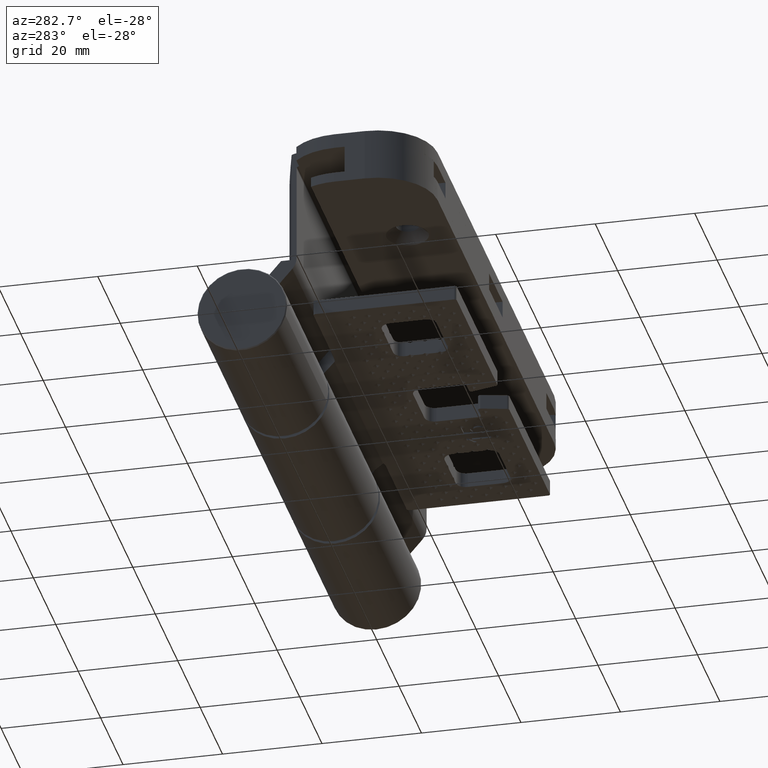
[diagram: clean part render]
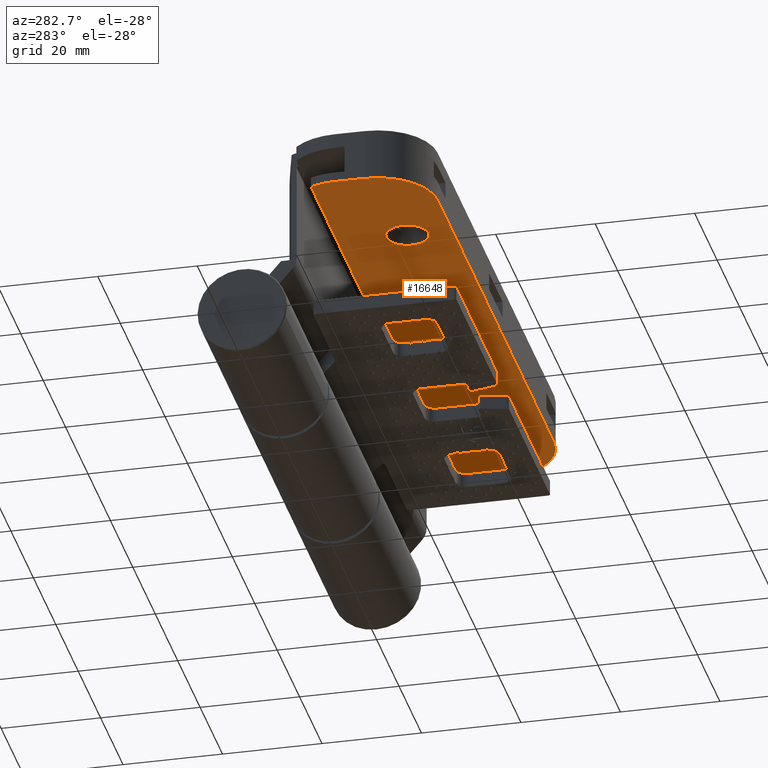
[diagram: same view with one face highlighted and labeled with its STEP entity id]
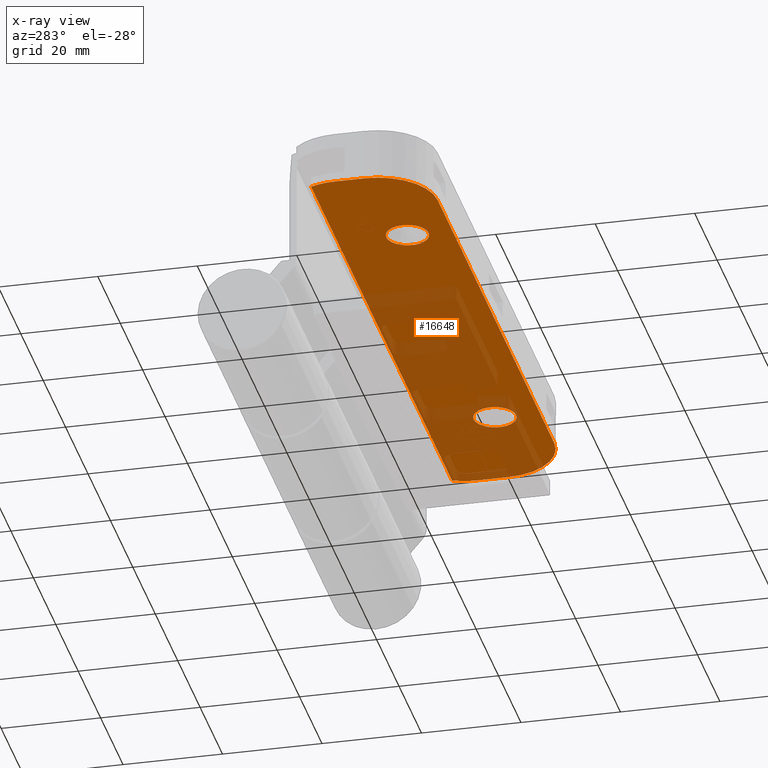
[diagram: x-ray of the same camera — body ghosted, the highlighted face saturated]
A machine part, auxiliary view. The second image highlights one B-rep face of the part: STEP entity #16648.
The next image is the same camera in x-ray: the body ghosted, the highlighted face saturated — about 42% of this face is hidden behind the body in this view.
In plain terms, the highlighted planar face has unit normal (0, -0, 1).
Its self-contained STEP definition (entity closure, byte-faithful):
#802 = DIRECTION ( 'NONE',  ( -2.220446049250395911E-16, -5.215223172159268679E-16, 1.000000000000000000 ) ) ;
#2287 = AXIS2_PLACEMENT_3D ( 'NONE', #50434, #47119, #9471 ) ;
#2388 = VECTOR ( 'NONE', #34766, 1000.000000000000000 ) ;
#3039 = VERTEX_POINT ( 'NONE', #8802 ) ;
#3677 = CARTESIAN_POINT ( 'NONE',  ( 6.499999999999946709, -52.00000000000031974, 2.000000000000026201 ) ) ;
#4590 = DIRECTION ( 'NONE',  ( 1.000000000000000000, 5.782411586589357639E-16, -2.168404344971009115E-16 ) ) ;
#5261 = EDGE_CURVE ( 'NONE', #46557, #49748, #7256, .T. ) ;
#5574 = DIRECTION ( 'NONE',  ( -1.000000000000000000, 0.000000000000000000, 2.040851148208012929E-16 ) ) ;
#6461 = EDGE_CURVE ( 'NONE', #3039, #22718, #47700, .T. ) ;
#7256 = CIRCLE ( 'NONE', #30104, 4.249999999999990230 ) ;
#7300 = LINE ( 'NONE', #36435, #42198 ) ;
#7444 = CARTESIAN_POINT ( 'NONE',  ( 11.49999999999996270, -62.90871211463584700, 2.000000000000027978 ) ) ;
#7533 = DIRECTION ( 'NONE',  ( -1.000000000000000000, 0.000000000000000000, 2.040851148208012929E-16 ) ) ;
#7811 = DIRECTION ( 'NONE',  ( 2.220446049250395911E-16, 5.215223172159268679E-16, -1.000000000000000000 ) ) ;
#8089 = EDGE_CURVE ( 'NONE', #52608, #47864, #30292, .T. ) ;
#8397 = CARTESIAN_POINT ( 'NONE',  ( 0.4999999999999414912, -52.00000000000027001, 2.000000000000022649 ) ) ;
#8748 = CIRCLE ( 'NONE', #43852, 11.99999999999999822 ) ;
#8802 = CARTESIAN_POINT ( 'NONE',  ( -11.50000000000002842, -52.00000000000027001, 2.000000000000043521 ) ) ;
#9471 = DIRECTION ( 'NONE',  ( -1.000000000000000000, 0.000000000000000000, 2.040851148208012929E-16 ) ) ;
#9869 = EDGE_CURVE ( 'NONE', #47946, #3039, #18955, .T. ) ;
#10141 = ORIENTED_EDGE ( 'NONE', *, *, #47766, .T. ) ;
#10449 = EDGE_LOOP ( 'NONE', ( #38351, #38154, #10916, #45058, #10141, #11177, #14873, #30681 ) ) ;
#10470 = CARTESIAN_POINT ( 'NONE',  ( 6.500000000000028422, 64.00000000000031264, 1.999999999999960032 ) ) ;
#10916 = ORIENTED_EDGE ( 'NONE', *, *, #24004, .T. ) ;
#11177 = ORIENTED_EDGE ( 'NONE', *, *, #16884, .T. ) ;
#11360 = CARTESIAN_POINT ( 'NONE',  ( 0.5000000000000316414, 64.00000000000021316, 1.999999999999974021 ) ) ;
#11643 = DIRECTION ( 'NONE',  ( -1.000000000000000000, -5.782411586589366513E-16, 2.168404344971012319E-16 ) ) ;
#11974 = DIRECTION ( 'NONE',  ( -1.000000000000000000, -5.782411586589357639E-16, 2.168404344971009115E-16 ) ) ;
#13209 = AXIS2_PLACEMENT_3D ( 'NONE', #38944, #38675, #46906 ) ;
#13380 = PLANE ( 'NONE',  #13209 ) ;
#14873 = ORIENTED_EDGE ( 'NONE', *, *, #35332, .T. ) ;
#15761 = DIRECTION ( 'NONE',  ( -2.220446049250395911E-16, -5.215223172159268679E-16, 1.000000000000000000 ) ) ;
#16057 = LINE ( 'NONE', #28982, #31315 ) ;
#16648 = ADVANCED_FACE ( 'NONE', ( #34284, #29604, #30156 ), #13380, .F. ) ;
#16884 = EDGE_CURVE ( 'NONE', #23137, #42384, #7300, .T. ) ;
#18501 = CIRCLE ( 'NONE', #36975, 4.249999999999990230 ) ;
#18955 = LINE ( 'NONE', #36296, #47068 ) ;
#19506 = CARTESIAN_POINT ( 'NONE',  ( -2.500000000000043965, -39.00000000000018474, 2.000000000000017319 ) ) ;
#20875 = EDGE_CURVE ( 'NONE', #44918, #26894, #16057, .T. ) ;
#22272 = CARTESIAN_POINT ( 'NONE',  ( 11.50000000000005329, 62.90871211463601753, 1.999999999999968914 ) ) ;
#22664 = LINE ( 'NONE', #31173, #2388 ) ;
#22718 = VERTEX_POINT ( 'NONE', #23192 ) ;
#22761 = CARTESIAN_POINT ( 'NONE',  ( 1.749999999999968692, -39.00000000000019185, 2.000000000000018208 ) ) ;
#23137 = VERTEX_POINT ( 'NONE', #10470 ) ;
#23192 = CARTESIAN_POINT ( 'NONE',  ( 0.4999999999999310552, -64.00000000000024158, 2.000000000000036415 ) ) ;
#24004 = EDGE_CURVE ( 'NONE', #54302, #44918, #51595, .T. ) ;
#24916 = DIRECTION ( 'NONE',  ( -2.220446049250395911E-16, -5.215223172159268679E-16, 1.000000000000000000 ) ) ;
#26752 = AXIS2_PLACEMENT_3D ( 'NONE', #45740, #7811, #7533 ) ;
#26894 = VERTEX_POINT ( 'NONE', #22272 ) ;
#26943 = CIRCLE ( 'NONE', #27845, 11.99999999999997868 ) ;
#27845 = AXIS2_PLACEMENT_3D ( 'NONE', #38726, #802, #46956 ) ;
#28301 = DIRECTION ( 'NONE',  ( 2.220446049250395911E-16, 5.215223172159268679E-16, -1.000000000000000000 ) ) ;
#28982 = CARTESIAN_POINT ( 'NONE',  ( 11.49999999999995559, -62.90871211463584700, 2.000000000000027978 ) ) ;
#29597 = CARTESIAN_POINT ( 'NONE',  ( 0.5000000000000247580, 52.00000000000018474, 1.999999999999972244 ) ) ;
#29604 = FACE_BOUND ( 'NONE', #48437, .T. ) ;
#30104 = AXIS2_PLACEMENT_3D ( 'NONE', #35711, #34452, #5574 ) ;
#30156 = FACE_OUTER_BOUND ( 'NONE', #10449, .T. ) ;
#30195 = CARTESIAN_POINT ( 'NONE',  ( 1.750000000000018874, 39.00000000000002842, 1.999999999999978462 ) ) ;
#30292 = CIRCLE ( 'NONE', #26752, 4.249999999999990230 ) ;
#30681 = ORIENTED_EDGE ( 'NONE', *, *, #9869, .T. ) ;
#31173 = CARTESIAN_POINT ( 'NONE',  ( 6.499999999999931610, -64.00000000000014211, 2.000000000000031086 ) ) ;
#31315 = VECTOR ( 'NONE', #41621, 1000.000000000000000 ) ;
#31521 = ORIENTED_EDGE ( 'NONE', *, *, #45664, .T. ) ;
#31554 = ORIENTED_EDGE ( 'NONE', *, *, #8089, .T. ) ;
#32661 = EDGE_CURVE ( 'NONE', #22718, #54302, #22664, .T. ) ;
#34284 = FACE_BOUND ( 'NONE', #49854, .T. ) ;
#34452 = DIRECTION ( 'NONE',  ( 2.220446049250395911E-16, 5.215223172159268679E-16, -1.000000000000000000 ) ) ;
#34766 = DIRECTION ( 'NONE',  ( 1.000000000000000000, 7.801111218853760496E-16, -2.220446049250393939E-16 ) ) ;
#35129 = ORIENTED_EDGE ( 'NONE', *, *, #37167, .T. ) ;
#35315 = CARTESIAN_POINT ( 'NONE',  ( -6.750000000000031974, -39.00000000000019185, 2.000000000000016431 ) ) ;
#35332 = EDGE_CURVE ( 'NONE', #42384, #47946, #8748, .T. ) ;
#35711 = CARTESIAN_POINT ( 'NONE',  ( -2.499999999999977796, 39.00000000000003553, 1.999999999999977573 ) ) ;
#36280 = ORIENTED_EDGE ( 'NONE', *, *, #5261, .T. ) ;
#36296 = CARTESIAN_POINT ( 'NONE',  ( -11.50000000000002842, -52.00000000000027001, 2.000000000000043521 ) ) ;
#36435 = CARTESIAN_POINT ( 'NONE',  ( 6.500000000000028422, 64.00000000000031264, 1.999999999999960032 ) ) ;
#36553 = DIRECTION ( 'NONE',  ( -1.000000000000000000, 0.000000000000000000, 2.040851148208012929E-16 ) ) ;
#36975 = AXIS2_PLACEMENT_3D ( 'NONE', #19506, #28301, #36553 ) ;
#37167 = EDGE_CURVE ( 'NONE', #47864, #52608, #18501, .T. ) ;
#38073 = CARTESIAN_POINT ( 'NONE',  ( -6.749999999999943157, 39.00000000000002842, 1.999999999999976685 ) ) ;
#38154 = ORIENTED_EDGE ( 'NONE', *, *, #32661, .T. ) ;
#38351 = ORIENTED_EDGE ( 'NONE', *, *, #6461, .T. ) ;
#38675 = DIRECTION ( 'NONE',  ( -2.220446049250397883E-16, 5.215223172159264735E-16, -1.000000000000000000 ) ) ;
#38726 = CARTESIAN_POINT ( 'NONE',  ( 6.500000000000023093, 52.00000000000016342, 1.999999999999970468 ) ) ;
#38944 = CARTESIAN_POINT ( 'NONE',  ( 0.4999999999999414912, -52.00000000000027001, 2.000000000000022649 ) ) ;
#41621 = DIRECTION ( 'NONE',  ( 7.801111218853754580E-16, 1.000000000000000000, -5.215223172159257832E-16 ) ) ;
#42198 = VECTOR ( 'NONE', #53734, 1000.000000000000000 ) ;
#42384 = VERTEX_POINT ( 'NONE', #11360 ) ;
#43625 = CARTESIAN_POINT ( 'NONE',  ( -11.49999999999997158, 52.00000000000018474, 1.999999999999975797 ) ) ;
#43852 = AXIS2_PLACEMENT_3D ( 'NONE', #29597, #46357, #4590 ) ;
#44918 = VERTEX_POINT ( 'NONE', #7444 ) ;
#45058 = ORIENTED_EDGE ( 'NONE', *, *, #20875, .T. ) ;
#45664 = EDGE_CURVE ( 'NONE', #49748, #46557, #49680, .T. ) ;
#45740 = CARTESIAN_POINT ( 'NONE',  ( -2.500000000000043965, -39.00000000000018474, 2.000000000000017319 ) ) ;
#46357 = DIRECTION ( 'NONE',  ( -2.220446049250395911E-16, -5.215223172159268679E-16, 1.000000000000000000 ) ) ;
#46557 = VERTEX_POINT ( 'NONE', #30195 ) ;
#46906 = DIRECTION ( 'NONE',  ( -1.000000000000000000, -7.801111218853760496E-16, 2.220446049250393939E-16 ) ) ;
#46956 = DIRECTION ( 'NONE',  ( 1.000000000000000000, 5.782411586589367500E-16, -2.168404344971012812E-16 ) ) ;
#47068 = VECTOR ( 'NONE', #53045, 1000.000000000000000 ) ;
#47119 = DIRECTION ( 'NONE',  ( 2.220446049250395911E-16, 5.215223172159268679E-16, -1.000000000000000000 ) ) ;
#47700 = CIRCLE ( 'NONE', #52961, 11.99999999999999822 ) ;
#47766 = EDGE_CURVE ( 'NONE', #26894, #23137, #26943, .T. ) ;
#47864 = VERTEX_POINT ( 'NONE', #22761 ) ;
#47946 = VERTEX_POINT ( 'NONE', #43625 ) ;
#48437 = EDGE_LOOP ( 'NONE', ( #35129, #31554 ) ) ;
#48491 = CARTESIAN_POINT ( 'NONE',  ( 6.499999999999931610, -64.00000000000014211, 2.000000000000031086 ) ) ;
#49680 = CIRCLE ( 'NONE', #2287, 4.249999999999990230 ) ;
#49748 = VERTEX_POINT ( 'NONE', #38073 ) ;
#49854 = EDGE_LOOP ( 'NONE', ( #36280, #31521 ) ) ;
#50434 = CARTESIAN_POINT ( 'NONE',  ( -2.499999999999977796, 39.00000000000003553, 1.999999999999977573 ) ) ;
#50749 = AXIS2_PLACEMENT_3D ( 'NONE', #3677, #15761, #11643 ) ;
#51595 = CIRCLE ( 'NONE', #50749, 11.99999999999998046 ) ;
#52608 = VERTEX_POINT ( 'NONE', #35315 ) ;
#52961 = AXIS2_PLACEMENT_3D ( 'NONE', #8397, #24916, #11974 ) ;
#53045 = DIRECTION ( 'NONE',  ( -7.801111218853754580E-16, -1.000000000000000000, 5.215223172159257832E-16 ) ) ;
#53734 = DIRECTION ( 'NONE',  ( -1.000000000000000000, -7.801111218853760496E-16, 2.220446049250393939E-16 ) ) ;
#54302 = VERTEX_POINT ( 'NONE', #48491 ) ;